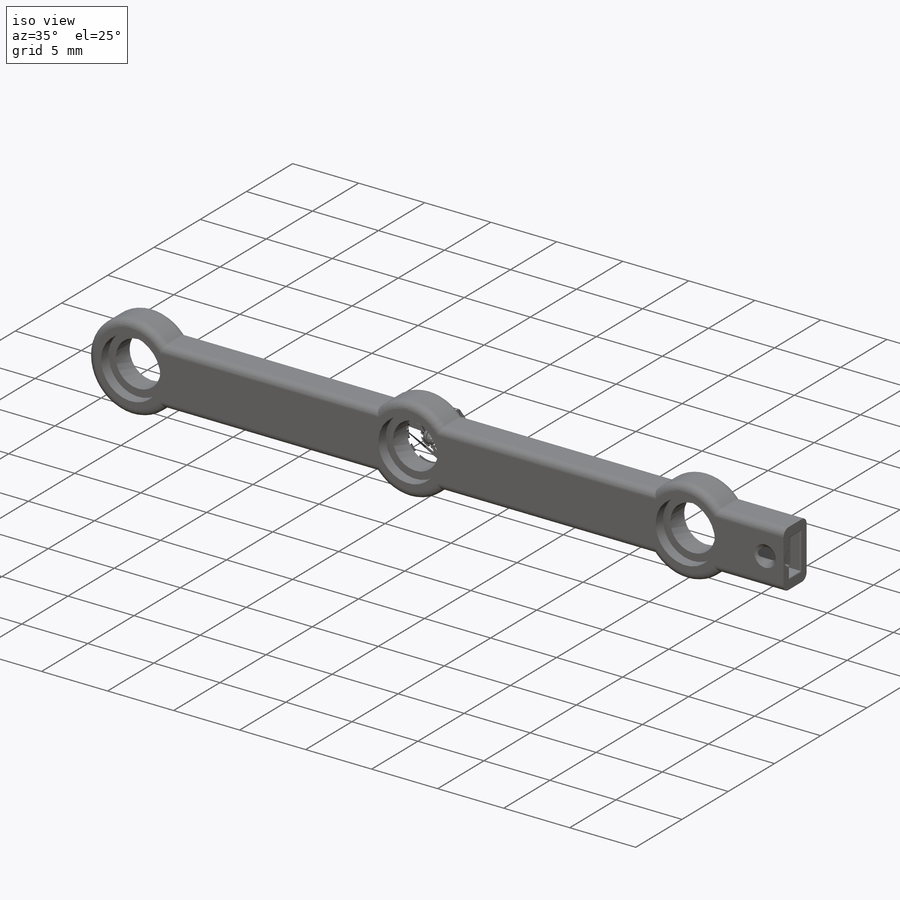
[diagram: iso view]
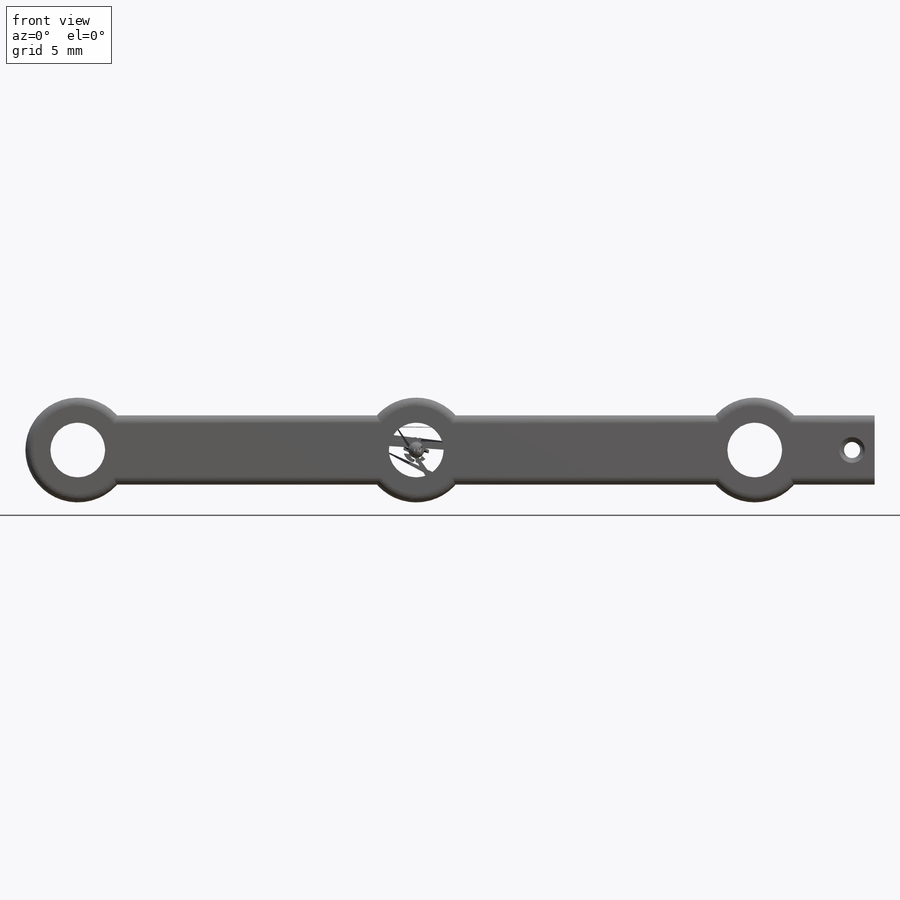
[diagram: front view]
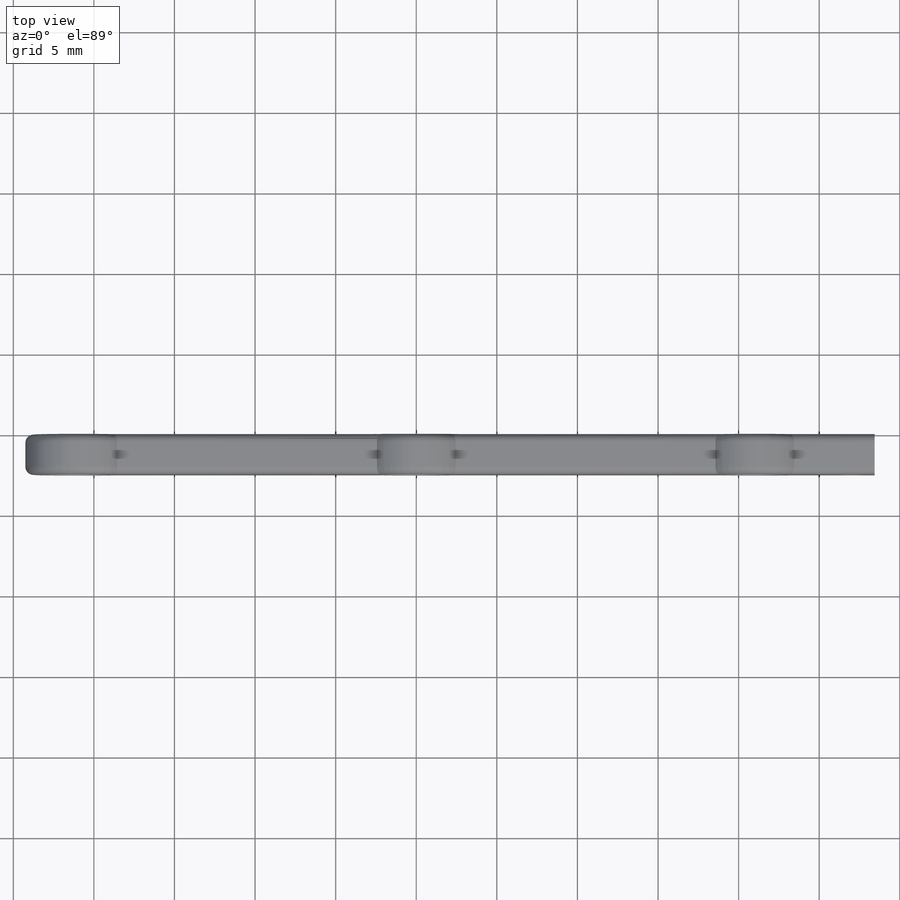
[diagram: top view]
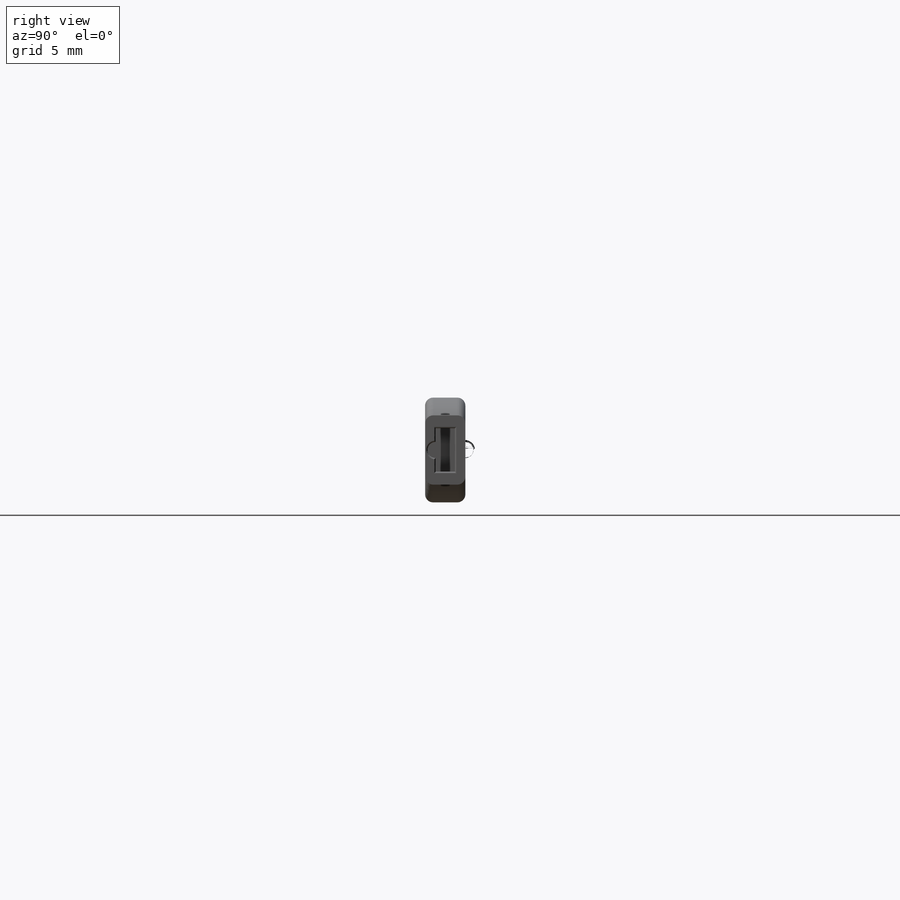
[diagram: right view]
SOLIDWORKS PART (.sldprt)
format: sldprt  version: not decoded by parser v0  size: 482,816 bytes
history: native  units: mm
features: sketch x4, cut_extrude x3, chamfer x2, fillet x2, material x1, extrude x1 (+13 scaffold rows collapsed)
feature tree (26):
  scaffold x13  (default folders/planes/origin — collapsed)
  material  "ABS"
  sketch  "Sketch1"  dims[D3=3.4mm D4=6.5mm D1=21.0mm D2=21.0mm D5=4.3mm D6=5.0mm]
  extrude  "Boss-Extrude1"  Depth=2.5mm
  sketch  "Sketch2"  dims[D1=4.5mm]
  cut_extrude  "Cut-Extrude1"  Depth=0.8mm
  chamfer  "Chamfer1"  Distance=0.2mm Angle=45deg
  fillet  "Fillet1"  Radius=0.5mm
  sketch  "Sketch3"  dims[D3=1.0mm D1=1.2mm D2=2.7mm]
  cut_extrude  "Cut-Extrude2"  Depth=4mm
  fillet  "Fillet2"  Radius=0.1mm
  sketch  "Sketch4"  dims[D2=1.0mm D1=1.4mm]
  cut_extrude  "Cut-Extrude3"  [1 undecoded]
  chamfer  "Chamfer2"  Distance=0.3mm Angle=45deg
decode coverage: 11 of 12 modeling features carry decoded parameters
note: 1 parameter value undecoded
note: suppression state not decoded; provenance and decode notes live in map.json
